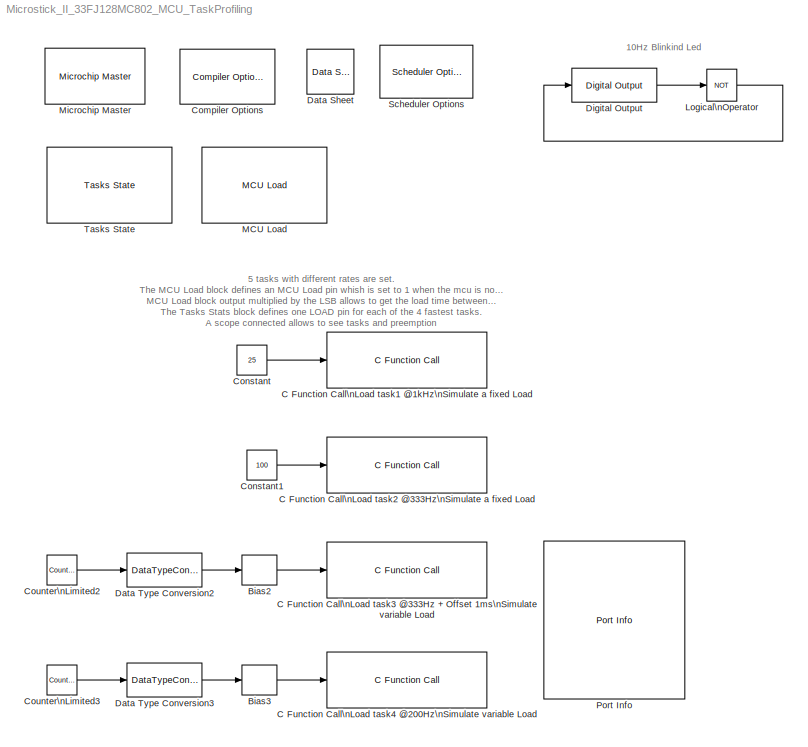
MODEL Microstick_II_33FJ128MC802_MCU_TaskProfiling
KIND model
BLOCK [Bias] Bias2
  Bias = 50
  SID = 20
  SaturateOnIntegerOverflow = off
BLOCK [Bias] Bias3
  Bias = 200
  SID = 24
  SaturateOnIntegerOverflow = off
BLOCK [Reference] C Function Call\nLoad task1 @1kHz\nSimulate a fixed Load  REF=MCHP_Blockset/User Functions/C Function Call
  AddHeaderDeclaration = off
  DataCollected = 0
  Fct1BlockIn = t_us
  FctReturnBlockOut = off
  Function1 = void __delay_us(unsigned long t_us)
  Function1Type = when block is updated (default)
  ListFunctions1 = Custom Function
  MCHP_MASTERLINK = Microstick_II_33FJ128MC802_MCU_TaskProfiling/Microchip Master
  ORDERING = None
  ParseFilesChkbx = on
  PinAnalogInput = []
  PinDigitalInput = []
  PinDigitalOutput = []
  Ports = [1]
  SID = 9
  SampleTime = [.001]
  SourceBlock = MCHP_Blockset/User Functions/C Function Call
  SourceType = C Function Call
BLOCK [Reference] C Function Call\nLoad task2 @333Hz\nSimulate a fixed Load  REF=MCHP_Blockset/User Functions/C Function Call
  AddHeaderDeclaration = off
  DataCollected = 0
  Fct1BlockIn = t_us
  FctReturnBlockOut = off
  Function1 = void __delay_us(unsigned long t_us)
  Function1Type = when block is updated (default)
  ListFunctions1 = Custom Function
  MCHP_MASTERLINK = Microstick_II_33FJ128MC802_MCU_TaskProfiling/Microchip Master
  ORDERING = None
  ParseFilesChkbx = on
  PinAnalogInput = []
  PinDigitalInput = []
  PinDigitalOutput = []
  Ports = [1]
  SID = 17
  SampleTime = [.003]
  SourceBlock = MCHP_Blockset/User Functions/C Function Call
  SourceType = C Function Call
BLOCK [Reference] C Function Call\nLoad task3 @333Hz + Offset 1ms\nSimulate variable Load  REF=MCHP_Blockset/User Functions/C Function Call
  AddHeaderDeclaration = off
  DataCollected = 0
  Fct1BlockIn = t_us
  FctReturnBlockOut = off
  Function1 = void __delay_us(unsigned long t_us)
  Function1Type = when block is updated (default)
  ListFunctions1 = Custom Function
  MCHP_MASTERLINK = Microstick_II_33FJ128MC802_MCU_TaskProfiling/Microchip Master
  ORDERING = None
  ParseFilesChkbx = on
  PinAnalogInput = []
  PinDigitalInput = []
  PinDigitalOutput = []
  Ports = [1]
  SID = 21
  SampleTime = [.003 .001]
  SourceBlock = MCHP_Blockset/User Functions/C Function Call
  SourceType = C Function Call
BLOCK [Reference] C Function Call\nLoad task4 @200Hz\nSimulate variable Load  REF=MCHP_Blockset/User Functions/C Function Call
  AddHeaderDeclaration = off
  DataCollected = 0
  Fct1BlockIn = t_us
  FctReturnBlockOut = off
  Function1 = void __delay_us(unsigned long t_us)
  Function1Type = when block is updated (default)
  ListFunctions1 = Custom Function
  MCHP_MASTERLINK = Microstick_II_33FJ128MC802_MCU_TaskProfiling/Microchip Master
  ORDERING = None
  ParseFilesChkbx = on
  PinAnalogInput = []
  PinDigitalInput = []
  PinDigitalOutput = []
  Ports = [1]
  SID = 25
  SampleTime = [.005]
  SourceBlock = MCHP_Blockset/User Functions/C Function Call
  SourceType = C Function Call
BLOCK [Reference] Compiler Options  REF=MCHP_Blockset/System Configuration/Compiler Options
  AssemblyListing = off
  COMP_LIST = Dynamic Options
  COMP_LIST_TXT = xc16 - v1.26
  DEBUG_INFO = on
  HEAP_SIZE = 0
  LATEST_CMPLR = off
  MCHP_MASTERLINK = Microstick_II_33FJ128MC802_MCU_TaskProfiling/Microchip Master
  MCHP_MULTITHREAD_COMPILATION = on
  MCODE = is less than 32768 (faster)
  MCONST = in code memory
  MDATA = Use only memory below address 8192 (faster)
  MPLAB_LINKLIB = default
  MPLAB_LINKLIB1 = default
  MSCALAR = Use only memory below address 8192 (faster)
  OMF = elf
  OMIT_FRAME_POINTER = on
  OPTIMIZATION_LEVEL = 3
  PROCEDURAL_ABSTRACTION = off
  Ports = []
  ProduceHexOutput = on
  SID = 2
  SourceBlock = MCHP_Blockset/System Configuration/Compiler Options
  UNROLL_LOOPS = on
  USE_64BIT_DOUBLE = off
BLOCK [Constant] Constant
  OutDataTypeMode = Inherit via back propagation
  OutDataTypeStr = Inherit: Inherit via back propagation
  SID = 29
  Value = 25
BLOCK [Constant] Constant1
  OutDataTypeMode = Inherit via back propagation
  OutDataTypeStr = Inherit: Inherit via back propagation
  SID = 30
  Value = 100
BLOCK [Reference] Counter\nLimited2  REF=simulink/Sources/Counter\nLimited
  FunctionWithSeparateData = off
  Ports = [0, 1]
  RTWMemSecDataConstants = Inherit from model
  RTWMemSecDataInternal = Inherit from model
  RTWMemSecDataParameters = Inherit from model
  RTWMemSecFuncExecute = Inherit from model
  RTWMemSecFuncInitTerm = Inherit from model
  SID = 22
  ShowPortLabels = FromPortIcon
  SourceBlock = simulink/Sources/Counter\nLimited
  SourceType = Counter Limited
  SystemSampleTime = -1
  tsamp = -1
  uplimit = 450
BLOCK [Reference] Counter\nLimited3  REF=simulink/Sources/Counter\nLimited
  FunctionWithSeparateData = off
  Ports = [0, 1]
  RTWMemSecDataConstants = Inherit from model
  RTWMemSecDataInternal = Inherit from model
  RTWMemSecDataParameters = Inherit from model
  RTWMemSecFuncExecute = Inherit from model
  RTWMemSecFuncInitTerm = Inherit from model
  SID = 26
  ShowPortLabels = FromPortIcon
  SourceBlock = simulink/Sources/Counter\nLimited
  SourceType = Counter Limited
  SystemSampleTime = -1
  tsamp = -1
  uplimit = 1500
BLOCK [Reference] Data Sheet  REF=MCHP_Blockset/System Info/Data Sheet
  AttributesFormatString = %<cpy_MCHP_Id>
  DOC_FileLastCheckTime = [2014             11             28             14             31          6.237]
  DOC_FilePath = <userpath><path>
  DOC_MCHP_Id = 33FJ64MC802
  DOC_Type = datasheet
  MCHP_MASTERLINK = Microstick_II_33FJ128MC802_MCU_TaskProfiling/Microchip Master
  Ports = []
  SID = 3
  SourceBlock = MCHP_Blockset/System Info/Data Sheet
  cpy_MCHP_Id = 33FJ128MC802
BLOCK [DataTypeConversion] Data Type Conversion2
  RndMeth = Floor
  SID = 23
  SaturateOnIntegerOverflow = off
BLOCK [DataTypeConversion] Data Type Conversion3
  RndMeth = Floor
  SID = 27
  SaturateOnIntegerOverflow = off
BLOCK [Reference] Digital Output  REF=MCHP_Blockset/Digital IO/Digital Output
  FunctionWithSeparateData = off
  MCHP_MASTERLINK = Microstick_II_33FJ128MC802_MCU_TaskProfiling/Microchip Master
  ORDERING = None
  PACK = off
  PIN = 0
  PORT = Dynamic Options
  PORT_TXT = A   [ 0 : 4 ]
  Ports = [1, 1]
  READPREVIOUS = on
  RTWMemSecDataConstants = Inherit from model
  RTWMemSecDataInternal = Inherit from model
  RTWMemSecDataParameters = Inherit from model
  RTWMemSecFuncExecute = Inherit from model
  RTWMemSecFuncInitTerm = Inherit from model
  SID = 4
  SIMULTANEOUS = off
  SampleTime = .05
  ShowPortLabels = FromPortIcon
  SourceBlock = MCHP_Blockset/Digital IO/Digital Output
  SystemSampleTime = -1
BLOCK [Logic] Logical\nOperator
  AllPortsSameDT = off
  Operator = NOT
  OutDataTypeMode = boolean
  OutDataTypeStr = boolean
  Ports = [1, 1]
  SID = 5
BLOCK [Reference] MCU Load  REF=MCHP_Blockset/Profiling/MCU Load
  Info = Timer 2:  Resol: 2.170963365(us)  -  Max: 142.276(ms)
  MCHP_COMPILED_INFO = CompiledSampleTime= [0.0050000000000000001   0 ];CompiledInportDataTypes=[ ];CompiledInportDataWidth=[];
  MCHP_MASTERLINK = Microstick_II_33FJ128MC802_MCU_TaskProfiling/Microchip Master
  MCHP_PORT = {MCU Load Pin}{MCU_Load}0:1:B11;
  MCHP_TIMER_REQUEST = {MCU_Load}{MCU_Load}21:5:0:0:[]:524288;
  MCHP_TIMER_RESULT = [2 65535 ]
  MCULoadMeasure = on
  MCULoadPin = Dynamic Options
  MCULoadPin_TXT = B11 / Pin[22]
  Ports = [0, 1]
  SID = 7
  SampleTime = .005
  SourceBlock = MCHP_Blockset/Profiling/MCU Load
  SourceType = MCU Load (Profile execution time)
  TIMER_Resolution = Dynamic Options
  TIMER_Resolution_TXT = Resol: 2.171(us)  -  Max: 0.142(s)
BLOCK [Reference] Microchip Master  REF=MCHP_Blockset/System Configuration/Microchip Master
  ACTIV_PLL = off
  ACTIV_PLL_spd = off
  AIVTDIS = Disable Alternate Vector Table
  ALTADREF = AVREF+/AVREF- are mapped to RA9/RA10
  ALTCMPI = C1INC is on RB13; C2INC is on RB9 and C3INC is on RA0
  ALTCVREF = CVREF+/CVREF- are mapped to RA9/RA10
  ALTI2C = I2C mapped to SDA1/SCL1 pins
  ALTI2C1 = I2C1 mapped to SDA1/SCL1 pins
  ALTI2C2 = I2C2 mapped to SDA2/SCL2 pins
  ALTPMP = EPMP pins are in default location mode
  ALTQIO = QEA1; QEB1; INDX1 are selected as inputs to QEI1
  ALTRB6 = Append the RP6/ASCL1/PMPD6 functions of RB6 to RA1 pin functions
  ALTSS1 = SS1A is selected as the I/O pin for SPI1
  ALTVREF = Voltage reference input; ADC =RA9/RA10 Comparator =RA9;RA10
  APL = Aux Flash Code protect is disabled
  APLK = Aux Flash Write Protection or Code Protection is Enabled
  ATMOD8 = Not used
  AWRP = Aux Flash may be written
  BACKBUG = Not used
  BKBUG = Device resets into Operational mode
  BODENV = 2.7V
  BOOTISA = Boot code and Exception code is MIPS32
  BOREN = Disable
  BOREN0 = Enabled
  BOREN1 = BOR Enabled [When BOREN=1]
  BORV = Brown-out Reset set at 2.0V
  BSEN = No Boot Segment
  BSLIM = Not used
  BSS = No boot program Flash segment
  BSS2 = No Boot Segment
  BTMODE = Device is in Single Boot (legacy) mode
  BTSWP = Not used
  BUSYFLAG = Dynamic Options
  BUSYFLAG_TXT = None
  BWP = Protection Disabled
  BWRP = Boot Segment may be written
  CMPPOL0 = Hysteresis is applied to falling edge
  CMPPOL1 = Hysteresis is applied to falling edge
  COE = Reset Into Operational Mode
  CP = Protection Disabled
  CSEQ = Not used
  CSS = No Protection (other than CWRP)
  CTXT1 = Not Assigned
  CTXT2 = Not Assigned
  CWRP = Configuration Segment may be written
  DBCC = Not used
  DBGPER = Allow CPU access to all permission regions
  DEBUG = Debugger is disabled
  DFMCY = Not used
  DISUVREG = Regulator is disabled
  DMTCNT = 2^31 (2147483648)
  DMTEN = Dead Man Timer is Enabled and cannot be disabled by software
  DMTINTV = Window/Interval value is 127/128 counter value
  DMTIVT = Not used
  DSBOREN = Deep Sleep BOR enabled in Deep Sleep
  DSLPBOR = Deep Sleep BOR enabled in Deep Sleep
  DSSWEN = Deep Sleep is controlled by the register bit DSEN
  DSWDTEN = DSWDT enabled
  DSWDTOSC = DSWDT uses Low Power RC Oscillator (LPRC)
  DSWDTPS = 1:2;147;483;648 (25.7 Days)
  EBS = No Boot EEPROM
  EJTAGBEN = Normal EJTAG functionality
  ESS = No Segment Data EEPROM
  EXTDDRSIZE = External DDR2 Size is 128 MB
  FCANIO = Default CAN I/O
  FCKSM = Both Clock Switching and Fail-safe Clock Monitor are disabled
  FCKSMEN = Sw Disabled; Mon Disabled
  FDMTEN = Deadman Timer is disabled
  FECCCON = ECC and Dynamic ECC are disabled (ECCCON bits are writable)
  FETHIO = Default Ethernet I/O
  FMIIEN = MII Enabled
  FNOSC = Internal Fast RC (FRC)
  FOS = Primary Oscillator
  FOSFPR = HS3 w/PLL 16x
  FPBDIV = Pb_Clk is Sys_Clk/8
  FPLLICLK = FRC is input to the System PLL
  FPLLIDIV = 12x Divider
  FPLLMUL = 24x Multiplier
  FPLLMULT = PLL Multiply by 128
  FPLLODIV = PLL Divide by 256
  FPLLRNG = 34-68 MHz Input
  FPR = ECIO w/ PLL 16x
  FPWRT = 128ms
  FRANGE = High Range
  FSLEEP = Flash is powered down when the device is in Sleep mode
  FSOSCEN = Enabled
  FSRSSEL = SRS Priority 7
  FUSBIDIO = Controlled by the USB Module
  FVBUSONIO = Controlled by USB Module
  FWDTEN = Disable
  FWDTWINSZ = Window size is 25%
  FWPSA = WDT prescaler ratio of 1:128
  FWPSA0 = 1:128
  FWPSB = 1:16
  GCP = General Segment Code protect is disabled
  GSS = User program memory is not code-protected
  GSS0 = No protection
  GSSK = General Segment Write Protection or Code Protection is Enabled
  GWRP = General Segment may be written
  HPOL = PWM module high side output pins have active-high output polarity
  HYST0 = 45 mV Hysteresis
  HYST1 = 45 mV Hysteresis
  I2C1SEL = Use Default SCL1/SDA1 Pins For I2C1
  I2C2SEL = I2C2 is multiplexed to SDA2/RA3 and SCL2/RA2
  ICESEL = Communicate on PGEC1/PGED1
  ICS = Communicate on PGEC1 and PGED1
  IESO = Start up with FRC; then switch
  IOL1WAY = Allow Only One Re-configuration
  JTAGEN = Disable
  LPCFG = Disabled - regardless of RETEN
  LPOL = PWM module low side output pins have active-high output polarity
  LPRCSEL = High Power; High Accuracy Mode
  LVRCFG = Low Voltage regulator is not available
  MCHPVAR = MCHP.fcy.periph=3685000;MCHP.fcy.MIPS=3685000;MCHP.PowerSave=0;MCHP.TimeStepFactor=1;MCHP.TimeStep_Timer=1;MCHP.NTIMERS=5;MCHP.id.name='33FJ128MC802';MCHP.id.N=reshape([33 128 802],1,3);MCHP.id.L=reshape({ 'FJ','MC',''},1,3);MCHP.id.Arch=3;MCHP.periph.PPS.reg_RPINRx=reshape([-1 1 1 -1 -1 -1 1 1 1 1 -1 -1 -1 -1 1 1 -1 -1 -1 -1 1 1 -1 -1 1 -1 1 -1 1 1 1 -1 1 1 1 -1 1 1 1 1 1 1 1 -1 1 1 1 -1 -1 -1 -1...<+5211ch>
  MCHP_CRC = 3813558
  MCHP_PLLRegisters = [-1 -1 -1 -1]
  MCHP_TIMER_REQUEST = {Time Step}{TS}0:2:3:1:[]:3685;
  MCHP_TIMER_RESULT = [1 3684 ]
  MCLRE = RA5 input pin disabled;MCLR pin enabled
  MIPS = 3.6850000000000001 * 1e6
  MIPS_DESIRED = 7370000
  MIPS_DESIRED_spd = 7370000
  ON = Not used
  OSCILLATOR_SELECT = Internal Fast RC (FRC)
  OSCILLATOR_SELECT_spd = Internal Fast RC (FRC)
  OSCIOFCN = OSCO/CLKO/RA3 functions as CLKO (FOSC/2)
  OSCIOFNC = OSC2 pin has digital I/O function
  PGL1WAY = Allow only one reconfiguration
  PICREF = 33FJ128MC802
  PLL96MHZ = 96 MHz PLL Startup is enabled automatically on start-up
  PLLDIV = PLL is disabled
  PLLKEN = Clock switch to PLL source will wait until the PLL lock signal is valid.
  PLLSS = PLL is fed by the Primary oscillator
  PLL_96MHZ = Enabled
  PMDL1WAY = Allow only one reconfiguration
  POSCBOOST = Boost the kick start of the oscillator
  POSCFREQ = Primary oscillator/external clock input frequency greater than 8MHz
  POSCGAIN = 2x gain setting
  POSCMD = Primary Oscillator Disabled
  POSCMOD = Primary Oscillator Disabled
  POWERSAVE = off
  PWMLOCK = PWM registers may be written without key sequence
  PWMPIN = PWM module pins controlled by PORT register at device Reset
  PWP = Disable
  PWRTEN = PWRT enabled
  Ports = []
  QUARTZ = 7.37e+06
  QUARTZ_spd = 7.37e+06
  RBS = No Boot RAM
  RES = Not used
  RES1 = Not used
  RES2 = Not used
  RESERVED1 = Not used
  RETCFG = Retention regulator is not available
  RSS = No Secure RAM
  RSTPRI = Device will obtain reset instruction from Primary flash
  RTCBAT = RTC operation is continued through VBAT
  RTCOSC = RTCC uses Secondary Oscillator (SOSC)
  SEQNUM = Not used
  SID = 1
  SMCLR = MCLR pin generates a normal system Reset
  SOSCBOOST = Boost the kick start of the oscillator
  SOSCGAIN = 2x gain setting
  SOSCSEL = Secondary oscillator configured for high-power operation
  SOSCSRC = Analog Mode for use with crystal
  SSS = No Secure Segment
  SWRP = Secure segment may be written
  SourceBlock = MCHP_Blockset/System Configuration/Microchip Master
  TEMP = Not used
  TIMESTEP_REF = Timer  ( 0.001s )
  TRCEN = Trace features in the CPU are enabled
  TSEQ = Not used
  UPLLEN = Disabled and bypassed
  UPLLFSEL = USB PLL input is 24 MHz
  UPLLIDIV = 12x Divider
  USERID = Not used
  VBTBOR = VBAT BOR enabled
  WDT = Disable
  WDTCLK = WDT uses LPRC
  WDTCMX = WDT clock source is determined by the WDTCLK Configuration bits
  WDTEN = Disable
  WDTPOST = 1:32768
  WDTPRE = 1:128
  WDTPS = 1:32768
  WDTSPGM = WDT stops during Flash programming
  WDTWIN = WDT Window is 25% of WDT period
  WINDIS = Watchdog Timer in Non-Window mode
  WPCFG = Disable
  WPDIS = Disable
  WPEND = Write Protect from WPFP to the last page of memory
  WPFP = Page 127 (0x1FC00)
  WUTSEL = Default regulator start-up time used
  WWDTEN = Non-Window mode
  nSEQNUM = Not used
BLOCK [Reference] Port Info  REF=MCHP_Blockset/System Info/Port Info
  MCHP_MASTERLINK = Microstick_II_33FJ128MC802_MCU_TaskProfiling/Microchip Master
  Ports = []
  SID = 6
  SourceBlock = MCHP_Blockset/System Info/Port Info
BLOCK [Reference] Scheduler Options  REF=MCHP_Blockset/System Configuration/Scheduler Options
  MCHP_MASTERLINK = UTester_33EP512MU810_CPUOverLoad/Microchip Master
  Ports = []
  SID = 28
  SourceBlock = MCHP_Blockset/System Configuration/Scheduler Options
  SourceType = Scheduler Options
  TaskOverloadBehaviour = Queue the task (queue length is 1)
BLOCK [Reference] Tasks State  REF=MCHP_Blockset/Profiling/Tasks State
  MCHP_MASTERLINK = Microstick_II_33FJ128MC802_MCU_TaskProfiling/Microchip Master
  MCHP_PORT = {Task D1 Running}{Task D1}15:1:B12;{Task D2 Running}{Task D2}15:1:B13;{Task D3 Running}{Task D3}15:1:B14;{Task D4 Running}{Task D4}15:1:B15;
  Ports = []
  SID = 8
  SourceBlock = MCHP_Blockset/Profiling/Tasks State
  SourceType = MCU Over-Load (Profile execution time)
  TasksPin = B[12:15]
ANNOTATION (root): 10Hz Blinkind Led
ANNOTATION (root): 5 tasks with different rates are set.\nThe MCU Load block defines an MCU Load pin whish is set to 1 when the mcu is not idle.\nMCU Load block output multiplied by the LSB allows to get the load time between two execution of this block (here set at 200Hz)\nThe Tasks Stats block defines one LOAD pin for each of the 4 fastest tasks.\nA scope connected allows to see tasks and preemption
LINE Bias2:1 -> C Function Call\nLoad task3 @333Hz + Offset 1ms\nSimulate variable Load:1
LINE Bias3:1 -> C Function Call\nLoad task4 @200Hz\nSimulate variable Load:1
LINE Constant1:1 -> C Function Call\nLoad task2 @333Hz\nSimulate a fixed Load:1
LINE Constant:1 -> C Function Call\nLoad task1 @1kHz\nSimulate a fixed Load:1
LINE Counter\nLimited2:1 -> Data Type Conversion2:1
LINE Counter\nLimited3:1 -> Data Type Conversion3:1
LINE Data Type Conversion2:1 -> Bias2:1
LINE Data Type Conversion3:1 -> Bias3:1
LINE Digital Output:1 -> Logical\nOperator:1
LINE Logical\nOperator:1 -> Digital Output:1
note: 1 file-system path scrubbed to <path> (not preserved elsewhere — flat text is the only slx artifact)
